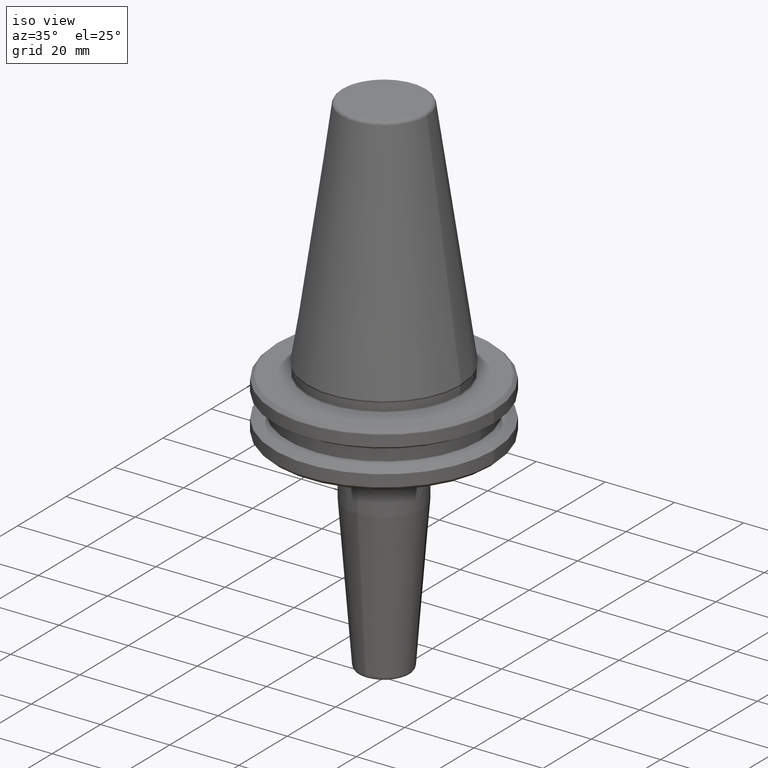
[diagram: clean part render]
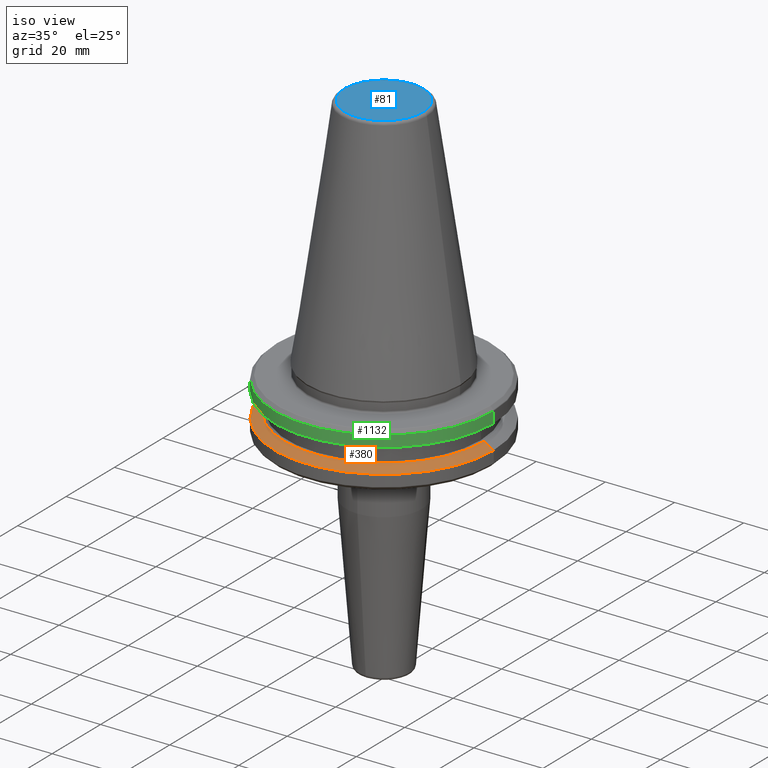
[diagram: same view with three faces highlighted in distinct colors, each labeled with its STEP entity id]
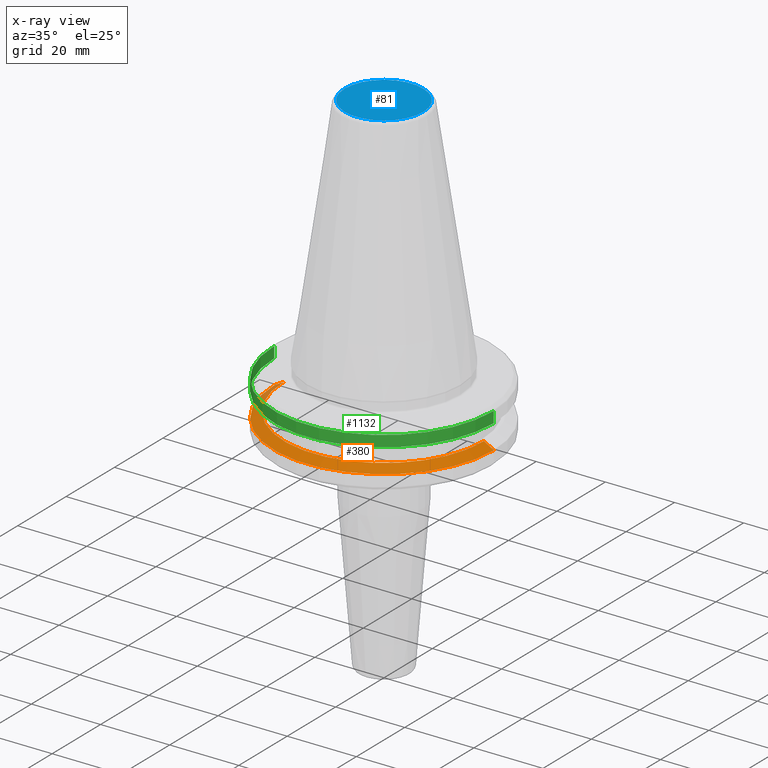
[diagram: x-ray of the same camera — body ghosted, the three highlighted faces saturated]
A machine part, iso view with three faces highlighted in distinct colors.
The next image is the same camera in x-ray (body ghosted, the three faces saturated) — at least one of them is partly hidden behind the body in this view.
Their STEP definitions:

[orange] entity #380 — the highlighted conical surface has half-angle 60 deg.
#9 = CARTESIAN_POINT ( 'NONE',  ( 31.75000000000000000, 0.0000000000000000000, -14.62183664205671200 ) ) ;
#22 = DIRECTION ( 'NONE',  ( -0.0000000000000000000, -0.0000000000000000000, 1.000000000000000000 ) ) ;
#65 = CARTESIAN_POINT ( 'NONE',  ( 0.0000000000000000000, 0.0000000000000000000, -13.00000000000001100 ) ) ;
#139 = VERTEX_POINT ( 'NONE', #9 ) ;
#186 = VERTEX_POINT ( 'NONE', #1061 ) ;
#199 = VERTEX_POINT ( 'NONE', #681 ) ;
#250 = EDGE_CURVE ( 'NONE', #199, #139, #445, .T. ) ;
#257 = EDGE_LOOP ( 'NONE', ( #1201, #654, #1228, #482 ) ) ;
#263 = EDGE_CURVE ( 'NONE', #186, #199, #659, .T. ) ;
#281 = FACE_OUTER_BOUND ( 'NONE', #257, .T. ) ;
#380 = ADVANCED_FACE ( 'NONE', ( #281 ), #523, .T. ) ;
#398 = LINE ( 'NONE', #887, #1129 ) ;
#413 = VECTOR ( 'NONE', #1254, 999.9999999999998900 ) ;
#445 = CIRCLE ( 'NONE', #715, 31.75000000000000000 ) ;
#482 = ORIENTED_EDGE ( 'NONE', *, *, #250, .T. ) ;
#499 = EDGE_CURVE ( 'NONE', #1070, #139, #398, .T. ) ;
#518 = DIRECTION ( 'NONE',  ( 0.8660254037844420400, 1.060575238724911000E-016, -0.4999999999999943900 ) ) ;
#523 = CONICAL_SURFACE ( 'NONE', #1115, 28.94089653438085100, 1.047197551196604300 ) ;
#527 = CIRCLE ( 'NONE', #824, 28.94089653438085100 ) ;
#595 = DIRECTION ( 'NONE',  ( -0.0000000000000000000, -0.0000000000000000000, 1.000000000000000000 ) ) ;
#601 = CARTESIAN_POINT ( 'NONE',  ( 0.0000000000000000000, 0.0000000000000000000, -13.00000000000001100 ) ) ;
#654 = ORIENTED_EDGE ( 'NONE', *, *, #1167, .F. ) ;
#657 = DIRECTION ( 'NONE',  ( -1.000000000000000000, 0.0000000000000000000, 0.0000000000000000000 ) ) ;
#659 = LINE ( 'NONE', #1186, #413 ) ;
#681 = CARTESIAN_POINT ( 'NONE',  ( -31.75000000000000000, 3.888253587292846500E-015, -14.62183664205671200 ) ) ;
#695 = DIRECTION ( 'NONE',  ( 1.000000000000000000, 0.0000000000000000000, 0.0000000000000000000 ) ) ;
#715 = AXIS2_PLACEMENT_3D ( 'NONE', #964, #595, #1154 ) ;
#768 = CARTESIAN_POINT ( 'NONE',  ( 28.94089653438085100, 3.716245608910634800E-015, -13.00000000000001100 ) ) ;
#824 = AXIS2_PLACEMENT_3D ( 'NONE', #601, #22, #695 ) ;
#887 = CARTESIAN_POINT ( 'NONE',  ( 28.94089653438085100, 3.544237630528423800E-015, -13.00000000000001100 ) ) ;
#964 = CARTESIAN_POINT ( 'NONE',  ( 0.0000000000000000000, 0.0000000000000000000, -14.62183664205671200 ) ) ;
#1061 = CARTESIAN_POINT ( 'NONE',  ( -28.94089653438085100, 0.0000000000000000000, -13.00000000000001100 ) ) ;
#1070 = VERTEX_POINT ( 'NONE', #768 ) ;
#1115 = AXIS2_PLACEMENT_3D ( 'NONE', #65, #1125, #657 ) ;
#1125 = DIRECTION ( 'NONE',  ( 0.0000000000000000000, 0.0000000000000000000, -1.000000000000000000 ) ) ;
#1129 = VECTOR ( 'NONE', #518, 999.9999999999998900 ) ;
#1154 = DIRECTION ( 'NONE',  ( 1.000000000000000000, 0.0000000000000000000, 0.0000000000000000000 ) ) ;
#1167 = EDGE_CURVE ( 'NONE', #186, #1070, #527, .T. ) ;
#1186 = CARTESIAN_POINT ( 'NONE',  ( -28.94089653438085100, 0.0000000000000000000, -13.00000000000001100 ) ) ;
#1201 = ORIENTED_EDGE ( 'NONE', *, *, #499, .F. ) ;
#1228 = ORIENTED_EDGE ( 'NONE', *, *, #263, .T. ) ;
#1254 = DIRECTION ( 'NONE',  ( -0.8660254037844420400, 0.0000000000000000000, -0.4999999999999943900 ) ) ;

[blue] entity #81 — the highlighted planar face has unit normal (0, -0, 1).
#36 = CARTESIAN_POINT ( 'NONE',  ( 0.0000000000000000000, 0.0000000000000000000, 68.40000000000000600 ) ) ;
#81 = ADVANCED_FACE ( 'NONE', ( #580 ), #865, .T. ) ;
#132 = CARTESIAN_POINT ( 'NONE',  ( 0.0000000000000000000, 0.0000000000000000000, 68.40000000000000600 ) ) ;
#148 = AXIS2_PLACEMENT_3D ( 'NONE', #790, #506, #1066 ) ;
#216 = CARTESIAN_POINT ( 'NONE',  ( 11.38516258961893100, 0.0000000000000000000, 68.40000000000000600 ) ) ;
#282 = EDGE_CURVE ( 'NONE', #995, #490, #385, .T. ) ;
#314 = EDGE_CURVE ( 'NONE', #490, #995, #1117, .T. ) ;
#331 = DIRECTION ( 'NONE',  ( 1.000000000000000000, 0.0000000000000000000, 0.0000000000000000000 ) ) ;
#359 = CARTESIAN_POINT ( 'NONE',  ( -11.38516258961893100, 1.454871700296352000E-015, 68.40000000000000600 ) ) ;
#384 = EDGE_LOOP ( 'NONE', ( #1068, #559 ) ) ;
#385 = CIRCLE ( 'NONE', #584, 11.38516258961893100 ) ;
#490 = VERTEX_POINT ( 'NONE', #216 ) ;
#506 = DIRECTION ( 'NONE',  ( 0.0000000000000000000, -0.0000000000000000000, 1.000000000000000000 ) ) ;
#559 = ORIENTED_EDGE ( 'NONE', *, *, #282, .T. ) ;
#580 = FACE_OUTER_BOUND ( 'NONE', #384, .T. ) ;
#584 = AXIS2_PLACEMENT_3D ( 'NONE', #36, #628, #331 ) ;
#628 = DIRECTION ( 'NONE',  ( -0.0000000000000000000, -0.0000000000000000000, 1.000000000000000000 ) ) ;
#790 = CARTESIAN_POINT ( 'NONE',  ( 0.0000000000000000000, -8.337524199435086500E-014, 68.39999999999999100 ) ) ;
#813 = DIRECTION ( 'NONE',  ( 1.000000000000000000, 0.0000000000000000000, 0.0000000000000000000 ) ) ;
#865 = PLANE ( 'NONE',  #148 ) ;
#897 = DIRECTION ( 'NONE',  ( -0.0000000000000000000, -0.0000000000000000000, 1.000000000000000000 ) ) ;
#921 = AXIS2_PLACEMENT_3D ( 'NONE', #132, #897, #813 ) ;
#995 = VERTEX_POINT ( 'NONE', #359 ) ;
#1066 = DIRECTION ( 'NONE',  ( 1.000000000000000000, 0.0000000000000000000, 0.0000000000000000000 ) ) ;
#1068 = ORIENTED_EDGE ( 'NONE', *, *, #314, .T. ) ;
#1117 = CIRCLE ( 'NONE', #921, 11.38516258961893100 ) ;

[green] entity #1132 — the highlighted cylindrical surface (partial cylindrical patch) has radius 31.75 mm, axis along (-0, -0, 1).
#42 = CIRCLE ( 'NONE', #1056, 31.75000000000000000 ) ;
#138 = LINE ( 'NONE', #292, #587 ) ;
#175 = EDGE_LOOP ( 'NONE', ( #323, #625, #289, #737 ) ) ;
#251 = DIRECTION ( 'NONE',  ( -0.0000000000000000000, -0.0000000000000000000, 1.000000000000000000 ) ) ;
#264 = DIRECTION ( 'NONE',  ( -0.0000000000000000000, -0.0000000000000000000, 1.000000000000000000 ) ) ;
#289 = ORIENTED_EDGE ( 'NONE', *, *, #1079, .T. ) ;
#292 = CARTESIAN_POINT ( 'NONE',  ( 31.75000000000000000, 0.0000000000000000000, 113.5216080541959500 ) ) ;
#298 = DIRECTION ( 'NONE',  ( -0.0000000000000000000, -0.0000000000000000000, 1.000000000000000000 ) ) ;
#302 = CYLINDRICAL_SURFACE ( 'NONE', #947, 31.75000000000000000 ) ;
#317 = CARTESIAN_POINT ( 'NONE',  ( -31.75000000000000000, 3.888253587292846500E-015, -4.365685424949250000 ) ) ;
#323 = ORIENTED_EDGE ( 'NONE', *, *, #363, .F. ) ;
#363 = EDGE_CURVE ( 'NONE', #869, #1217, #1088, .T. ) ;
#390 = VERTEX_POINT ( 'NONE', #644 ) ;
#397 = DIRECTION ( 'NONE',  ( -0.0000000000000000000, -0.0000000000000000000, 1.000000000000000000 ) ) ;
#453 = CARTESIAN_POINT ( 'NONE',  ( 0.0000000000000000000, 0.0000000000000000000, -7.578163357943284800 ) ) ;
#503 = CARTESIAN_POINT ( 'NONE',  ( 0.0000000000000000000, 0.0000000000000000000, 113.5216080541959500 ) ) ;
#538 = DIRECTION ( 'NONE',  ( -0.0000000000000000000, -0.0000000000000000000, 1.000000000000000000 ) ) ;
#547 = DIRECTION ( 'NONE',  ( 1.000000000000000000, 0.0000000000000000000, 0.0000000000000000000 ) ) ;
#572 = EDGE_CURVE ( 'NONE', #869, #390, #1038, .T. ) ;
#587 = VECTOR ( 'NONE', #397, 1000.000000000000000 ) ;
#612 = EDGE_CURVE ( 'NONE', #1217, #676, #42, .T. ) ;
#625 = ORIENTED_EDGE ( 'NONE', *, *, #572, .T. ) ;
#644 = CARTESIAN_POINT ( 'NONE',  ( 31.75000000000000000, 0.0000000000000000000, -7.578163357943284800 ) ) ;
#676 = VERTEX_POINT ( 'NONE', #1190 ) ;
#737 = ORIENTED_EDGE ( 'NONE', *, *, #612, .F. ) ;
#827 = VECTOR ( 'NONE', #264, 1000.000000000000000 ) ;
#869 = VERTEX_POINT ( 'NONE', #1206 ) ;
#916 = DIRECTION ( 'NONE',  ( 1.000000000000000000, 0.0000000000000000000, 0.0000000000000000000 ) ) ;
#947 = AXIS2_PLACEMENT_3D ( 'NONE', #503, #298, #1164 ) ;
#955 = AXIS2_PLACEMENT_3D ( 'NONE', #453, #538, #547 ) ;
#1018 = CARTESIAN_POINT ( 'NONE',  ( 0.0000000000000000000, 0.0000000000000000000, -4.365685424949250000 ) ) ;
#1038 = CIRCLE ( 'NONE', #955, 31.75000000000000000 ) ;
#1056 = AXIS2_PLACEMENT_3D ( 'NONE', #1018, #251, #916 ) ;
#1065 = FACE_OUTER_BOUND ( 'NONE', #175, .T. ) ;
#1079 = EDGE_CURVE ( 'NONE', #390, #676, #138, .T. ) ;
#1088 = LINE ( 'NONE', #1240, #827 ) ;
#1132 = ADVANCED_FACE ( 'NONE', ( #1065 ), #302, .T. ) ;
#1164 = DIRECTION ( 'NONE',  ( 1.000000000000000000, 0.0000000000000000000, 0.0000000000000000000 ) ) ;
#1190 = CARTESIAN_POINT ( 'NONE',  ( 31.75000000000000000, 0.0000000000000000000, -4.365685424949250000 ) ) ;
#1206 = CARTESIAN_POINT ( 'NONE',  ( -31.75000000000000000, 3.888253587292846500E-015, -7.578163357943284800 ) ) ;
#1217 = VERTEX_POINT ( 'NONE', #317 ) ;
#1240 = CARTESIAN_POINT ( 'NONE',  ( -31.75000000000000000, 3.888253587292846500E-015, 113.5216080541959500 ) ) ;